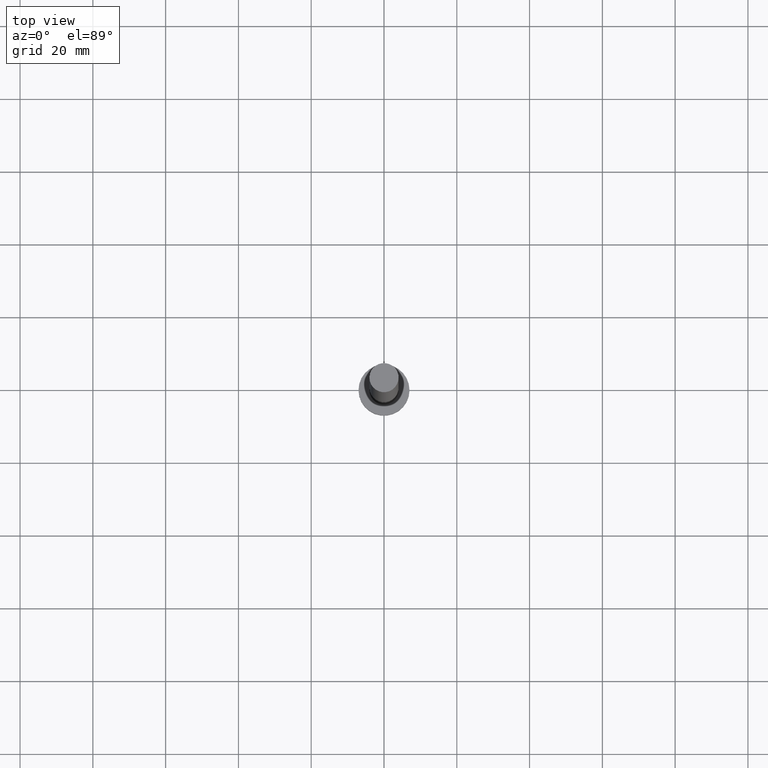
[diagram: clean part render]
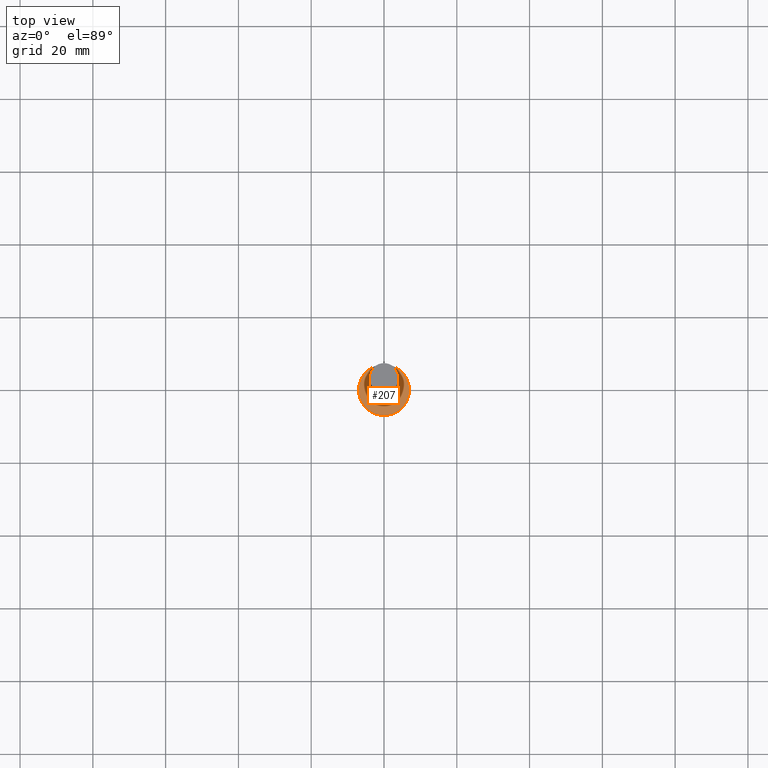
[diagram: same view with one face highlighted and labeled with its STEP entity id]
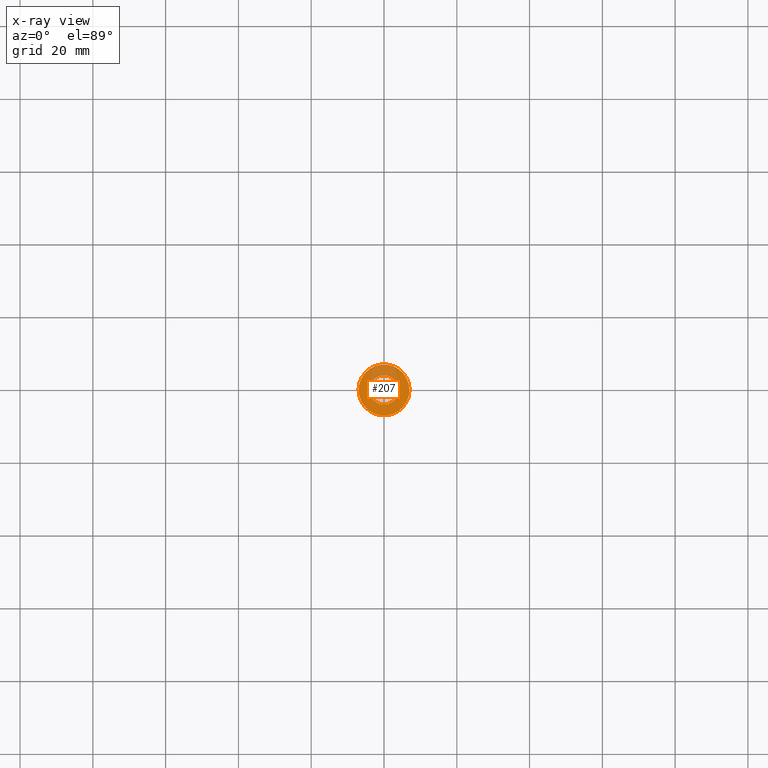
[diagram: x-ray of the same camera — body ghosted, the highlighted face saturated]
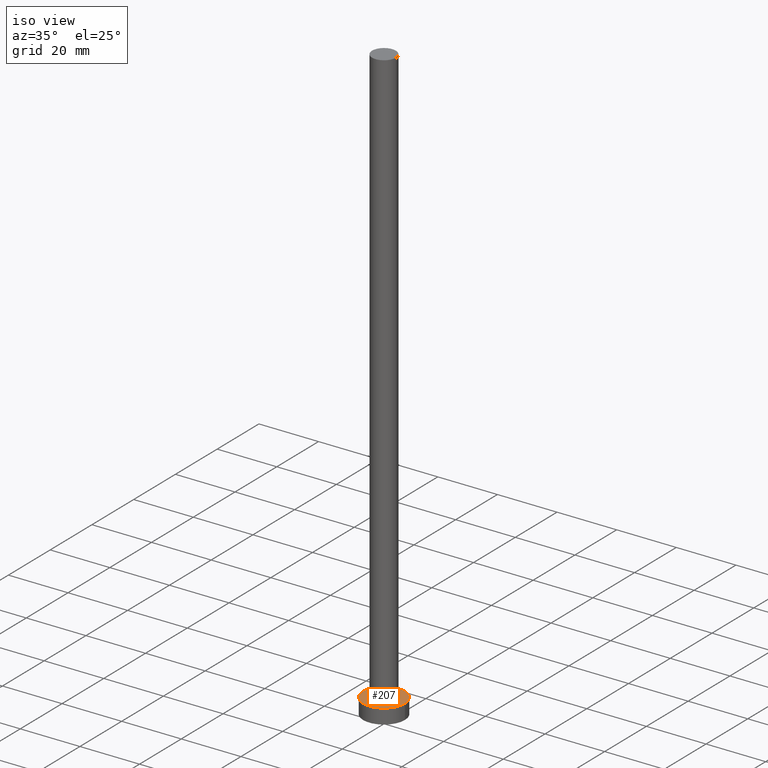
[diagram: same view with one face highlighted and labeled with its STEP entity id]
A machine part, top view. The second image highlights one B-rep face of the part: STEP entity #207.
The next image is the same camera in x-ray: the body ghosted, the highlighted face saturated — about 25% of this face is hidden behind the body in this view.
A second angle (iso view) of the same face is appended — the face is thin or edge-on in the first view.
In plain terms, the highlighted planar face has unit normal (0, 0, 1).
Its self-contained STEP definition (entity closure, byte-faithful):
#6 = CARTESIAN_POINT ( 'NONE',  ( 4.000000000000000000, 4.898587196589412829E-16, 5.000000000000000000 ) ) ;
#7 = EDGE_CURVE ( 'NONE', #38, #97, #185, .T. ) ;
#8 = CARTESIAN_POINT ( 'NONE',  ( 0.000000000000000000, 0.000000000000000000, 5.000000000000000000 ) ) ;
#10 = DIRECTION ( 'NONE',  ( 1.000000000000000000, 0.000000000000000000, 0.000000000000000000 ) ) ;
#14 = CIRCLE ( 'NONE', #94, 7.000000000000000000 ) ;
#38 = VERTEX_POINT ( 'NONE', #175 ) ;
#47 = DIRECTION ( 'NONE',  ( 1.000000000000000000, 0.000000000000000000, -0.000000000000000000 ) ) ;
#58 = EDGE_LOOP ( 'NONE', ( #118, #229 ) ) ;
#70 = CARTESIAN_POINT ( 'NONE',  ( 0.000000000000000000, 0.000000000000000000, 5.000000000000000000 ) ) ;
#73 = CIRCLE ( 'NONE', #205, 4.000000000000000000 ) ;
#75 = EDGE_CURVE ( 'NONE', #97, #38, #14, .T. ) ;
#78 = CARTESIAN_POINT ( 'NONE',  ( -4.000000000000000000, 0.000000000000000000, 5.000000000000000000 ) ) ;
#84 = DIRECTION ( 'NONE',  ( 0.000000000000000000, 0.000000000000000000, 1.000000000000000000 ) ) ;
#88 = FACE_BOUND ( 'NONE', #213, .T. ) ;
#94 = AXIS2_PLACEMENT_3D ( 'NONE', #218, #121, #172 ) ;
#97 = VERTEX_POINT ( 'NONE', #147 ) ;
#100 = VERTEX_POINT ( 'NONE', #6 ) ;
#101 = CARTESIAN_POINT ( 'NONE',  ( 0.000000000000000000, 0.000000000000000000, 5.000000000000000000 ) ) ;
#108 = DIRECTION ( 'NONE',  ( 0.000000000000000000, 0.000000000000000000, 1.000000000000000000 ) ) ;
#114 = EDGE_CURVE ( 'NONE', #255, #100, #176, .T. ) ;
#118 = ORIENTED_EDGE ( 'NONE', *, *, #7, .T. ) ;
#121 = DIRECTION ( 'NONE',  ( 0.000000000000000000, 0.000000000000000000, 1.000000000000000000 ) ) ;
#142 = DIRECTION ( 'NONE',  ( 1.000000000000000000, 0.000000000000000000, 0.000000000000000000 ) ) ;
#147 = CARTESIAN_POINT ( 'NONE',  ( 7.000000000000000000, 8.572527594031473190E-16, 5.000000000000000000 ) ) ;
#153 = DIRECTION ( 'NONE',  ( 1.000000000000000000, 0.000000000000000000, 0.000000000000000000 ) ) ;
#156 = DIRECTION ( 'NONE',  ( 0.000000000000000000, 0.000000000000000000, 1.000000000000000000 ) ) ;
#158 = FACE_OUTER_BOUND ( 'NONE', #58, .T. ) ;
#166 = ORIENTED_EDGE ( 'NONE', *, *, #231, .F. ) ;
#172 = DIRECTION ( 'NONE',  ( 1.000000000000000000, 0.000000000000000000, 0.000000000000000000 ) ) ;
#175 = CARTESIAN_POINT ( 'NONE',  ( -7.000000000000000000, 0.000000000000000000, 5.000000000000000000 ) ) ;
#176 = CIRCLE ( 'NONE', #227, 4.000000000000000000 ) ;
#178 = CARTESIAN_POINT ( 'NONE',  ( 0.000000000000000000, 0.000000000000000000, 5.000000000000000000 ) ) ;
#181 = PLANE ( 'NONE',  #254 ) ;
#185 = CIRCLE ( 'NONE', #223, 7.000000000000000000 ) ;
#187 = ORIENTED_EDGE ( 'NONE', *, *, #114, .F. ) ;
#192 = DIRECTION ( 'NONE',  ( 0.000000000000000000, 0.000000000000000000, 1.000000000000000000 ) ) ;
#205 = AXIS2_PLACEMENT_3D ( 'NONE', #8, #108, #10 ) ;
#207 = ADVANCED_FACE ( 'NONE', ( #88, #158 ), #181, .T. ) ;
#213 = EDGE_LOOP ( 'NONE', ( #187, #166 ) ) ;
#218 = CARTESIAN_POINT ( 'NONE',  ( 0.000000000000000000, 0.000000000000000000, 5.000000000000000000 ) ) ;
#223 = AXIS2_PLACEMENT_3D ( 'NONE', #101, #84, #153 ) ;
#227 = AXIS2_PLACEMENT_3D ( 'NONE', #178, #192, #142 ) ;
#229 = ORIENTED_EDGE ( 'NONE', *, *, #75, .T. ) ;
#231 = EDGE_CURVE ( 'NONE', #100, #255, #73, .T. ) ;
#254 = AXIS2_PLACEMENT_3D ( 'NONE', #70, #156, #47 ) ;
#255 = VERTEX_POINT ( 'NONE', #78 ) ;